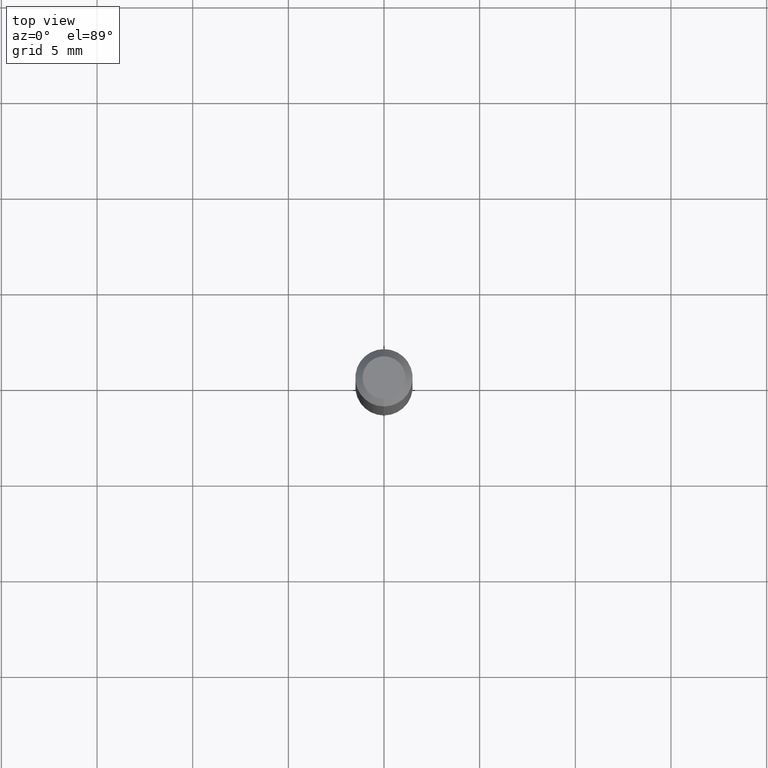
[diagram: clean part render]
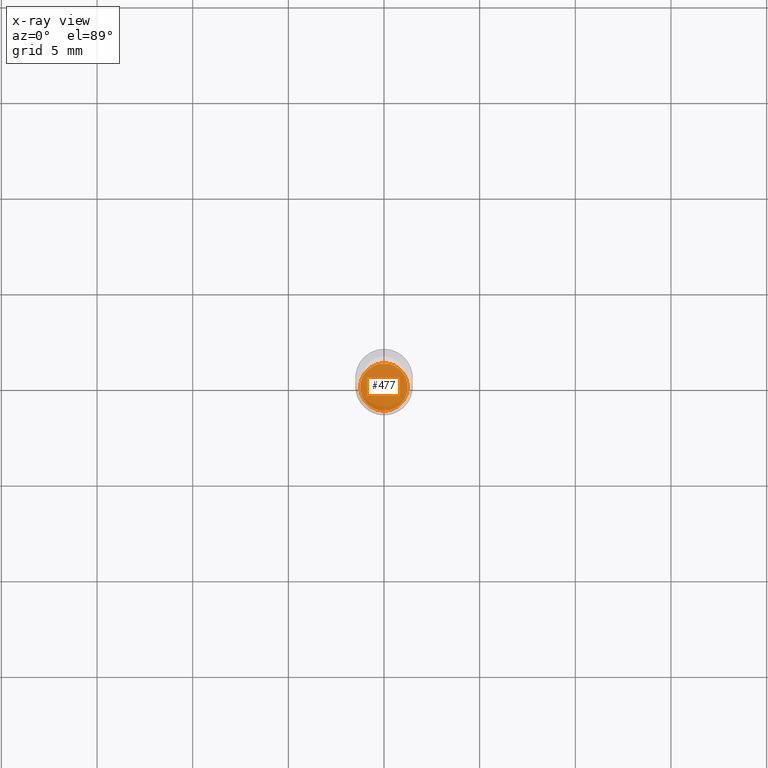
[diagram: x-ray — body ghosted, one internal face saturated and labeled with its STEP entity id]
A machine part, top view, then the same camera in x-ray: the body is ghosted and one INTERNAL B-rep face — a face not visible from any outside direction — is saturated and labeled: STEP entity #477.
In plain terms, the highlighted planar face has unit normal (-0, 0, 1).
Its self-contained STEP definition (entity closure, byte-faithful):
#47 = DIRECTION ( 'NONE',  ( -6.982962677686266711E-15, -1.000000000000000000, 2.804772067417108113E-15 ) ) ;
#63 = CIRCLE ( 'NONE', #114, 0.04870000000000000023 ) ;
#101 = AXIS2_PLACEMENT_3D ( 'NONE', #221, #382, #408 ) ;
#114 = AXIS2_PLACEMENT_3D ( 'NONE', #232, #395, #47 ) ;
#128 = EDGE_CURVE ( 'NONE', #421, #459, #63, .T. ) ;
#132 = DIRECTION ( 'NONE',  ( -6.982962677686266711E-15, -1.000000000000000000, 2.804772067417108113E-15 ) ) ;
#136 = CARTESIAN_POINT ( 'NONE',  ( -3.400702824032937589E-16, -0.04870000000000392071, -1.122099999999999653 ) ) ;
#180 = AXIS2_PLACEMENT_3D ( 'NONE', #497, #301, #132 ) ;
#210 = CIRCLE ( 'NONE', #180, 0.04870000000000000023 ) ;
#216 = ORIENTED_EDGE ( 'NONE', *, *, #315, .F. ) ;
#221 = CARTESIAN_POINT ( 'NONE',  ( 2.744205167662206488E-29, -3.917584105898268911E-15, -1.122099999999999875 ) ) ;
#232 = CARTESIAN_POINT ( 'NONE',  ( 2.744205167662206488E-29, -3.917584105898268911E-15, -1.122099999999999875 ) ) ;
#249 = PLANE ( 'NONE',  #101 ) ;
#256 = ORIENTED_EDGE ( 'NONE', *, *, #128, .F. ) ;
#264 = FACE_OUTER_BOUND ( 'NONE', #339, .T. ) ;
#301 = DIRECTION ( 'NONE',  ( -2.445597689744413996E-29, 3.491296770250663651E-15, 1.000000000000000000 ) ) ;
#315 = EDGE_CURVE ( 'NONE', #459, #421, #210, .T. ) ;
#339 = EDGE_LOOP ( 'NONE', ( #256, #216 ) ) ;
#382 = DIRECTION ( 'NONE',  ( -2.445597689744413996E-29, 3.491296770250663257E-15, 1.000000000000000000 ) ) ;
#395 = DIRECTION ( 'NONE',  ( -2.445597689744413996E-29, 3.491296770250663651E-15, 1.000000000000000000 ) ) ;
#408 = DIRECTION ( 'NONE',  ( -6.982962677686265922E-15, -1.000000000000000000, 3.491296770250663257E-15 ) ) ;
#416 = CARTESIAN_POINT ( 'NONE',  ( 3.478106691545965557E-16, 0.04869999999999607976, -1.122100000000000097 ) ) ;
#421 = VERTEX_POINT ( 'NONE', #136 ) ;
#459 = VERTEX_POINT ( 'NONE', #416 ) ;
#477 = ADVANCED_FACE ( 'NONE', ( #264 ), #249, .F. ) ;
#497 = CARTESIAN_POINT ( 'NONE',  ( 2.744205167662206488E-29, -3.917584105898268911E-15, -1.122099999999999875 ) ) ;